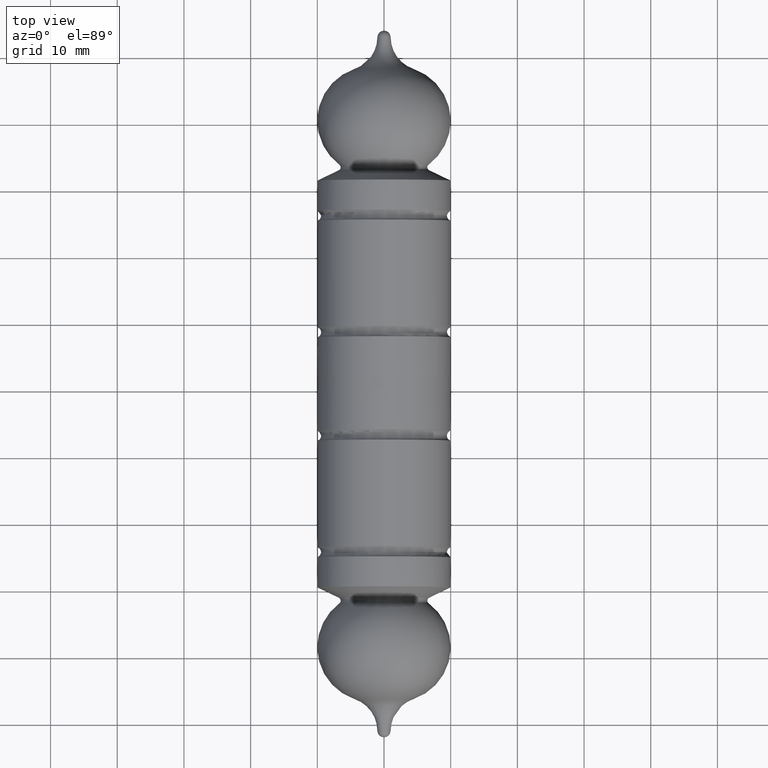
[diagram: clean part render]
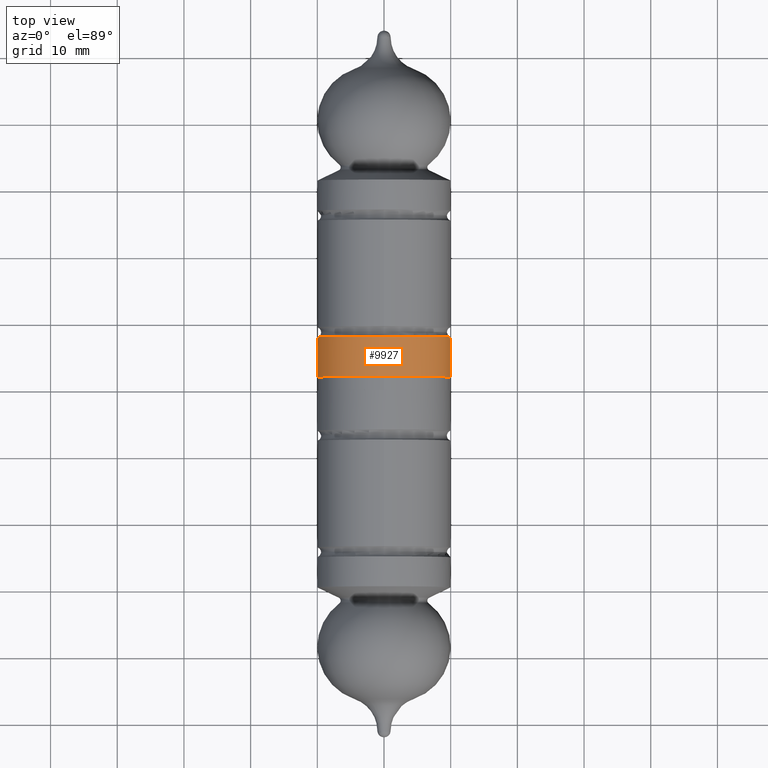
[diagram: same view with one face highlighted and labeled with its STEP entity id]
A machine part, top view. The second image highlights one B-rep face of the part: STEP entity #9927.
In plain terms, the highlighted cylindrical surface (bore or boss wall) has radius 10 mm, axis along (-0, -1, -0).
Its self-contained STEP definition (entity closure, byte-faithful):
#449 = ORIENTED_EDGE ( 'NONE', *, *, #7329, .F. ) ;
#586 = VERTEX_POINT ( 'NONE', #11281 ) ;
#1584 = DIRECTION ( 'NONE',  ( 5.811883114597632341E-17, 1.000000000000000000, -2.773339119917631671E-32 ) ) ;
#1726 = CIRCLE ( 'NONE', #11107, 10.00000000000004619 ) ;
#1841 = AXIS2_PLACEMENT_3D ( 'NONE', #2060, #5027, #8790 ) ;
#1924 = CARTESIAN_POINT ( 'NONE',  ( -3.487129868758584828E-16, -6.000000000000001776, -10.00000000000004619 ) ) ;
#2060 = CARTESIAN_POINT ( 'NONE',  ( 0.000000000000000000, 0.000000000000000000, 0.000000000000000000 ) ) ;
#2551 = ORIENTED_EDGE ( 'NONE', *, *, #9098, .F. ) ;
#2852 = DIRECTION ( 'NONE',  ( 0.000000000000000000, 0.000000000000000000, -1.000000000000000000 ) ) ;
#3400 = CARTESIAN_POINT ( 'NONE',  ( 0.000000000000000000, 0.000000000000000000, 0.000000000000000000 ) ) ;
#3495 = FACE_OUTER_BOUND ( 'NONE', #10017, .T. ) ;
#4000 = CIRCLE ( 'NONE', #10952, 10.00000000000004619 ) ;
#5027 = DIRECTION ( 'NONE',  ( 5.811883114597632341E-17, 1.000000000000000000, -2.773339119917631671E-32 ) ) ;
#5501 = VERTEX_POINT ( 'NONE', #1924 ) ;
#5810 = FACE_OUTER_BOUND ( 'NONE', #8770, .T. ) ;
#6682 = CYLINDRICAL_SURFACE ( 'NONE', #1841, 10.00000000000004619 ) ;
#7329 = EDGE_CURVE ( 'NONE', #5501, #5501, #1726, .T. ) ;
#8770 = EDGE_LOOP ( 'NONE', ( #449 ) ) ;
#8790 = DIRECTION ( 'NONE',  ( -1.000000000000000000, 5.811883114597584269E-17, -1.611832280210216235E-48 ) ) ;
#9098 = EDGE_CURVE ( 'NONE', #586, #586, #4000, .T. ) ;
#9337 = DIRECTION ( 'NONE',  ( -8.320017359752876401E-32, -1.000000000000000000, 2.773339119917631671E-32 ) ) ;
#9927 = ADVANCED_FACE ( 'NONE', ( #3495, #5810 ), #6682, .T. ) ;
#10017 = EDGE_LOOP ( 'NONE', ( #2551 ) ) ;
#10671 = DIRECTION ( 'NONE',  ( -1.000000000000000000, 5.811883114597584269E-17, -1.611832280210216235E-48 ) ) ;
#10952 = AXIS2_PLACEMENT_3D ( 'NONE', #3400, #1584, #10671 ) ;
#10954 = CARTESIAN_POINT ( 'NONE',  ( -3.487129868758584828E-16, -6.000000000000001776, 1.664003471950578346E-31 ) ) ;
#11107 = AXIS2_PLACEMENT_3D ( 'NONE', #10954, #9337, #2852 ) ;
#11281 = CARTESIAN_POINT ( 'NONE',  ( -10.00000000000004619, 5.811883114597611633E-16, -1.611832280210223771E-47 ) ) ;